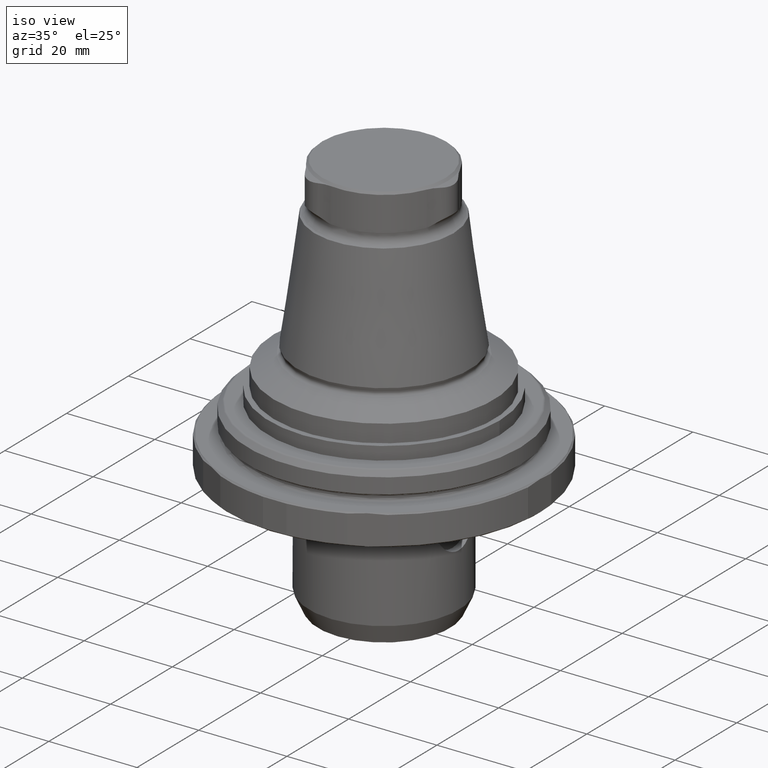
[diagram: clean part render]
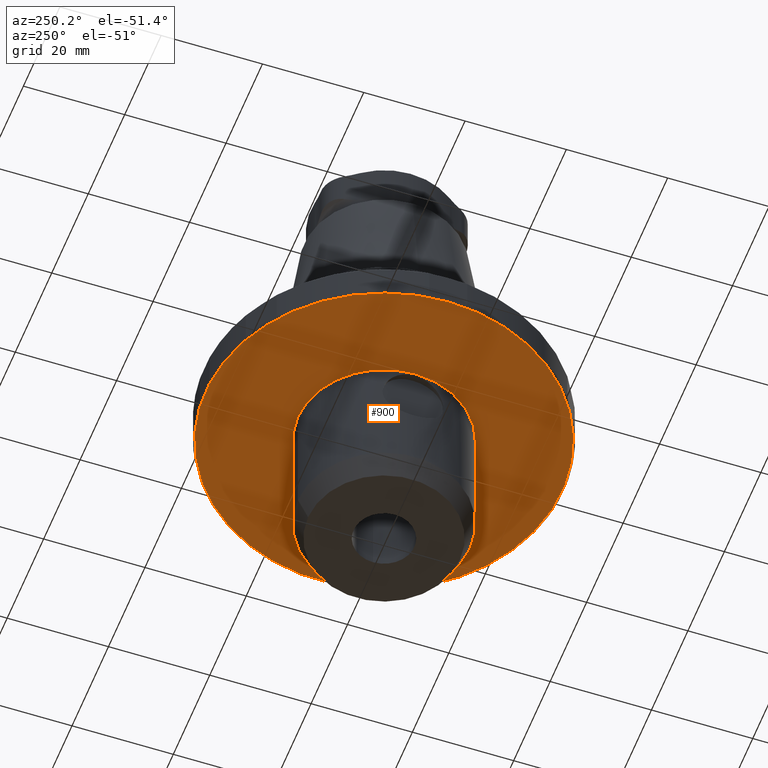
[diagram: tour spotlight — one face highlighted and labeled with its STEP entity id]
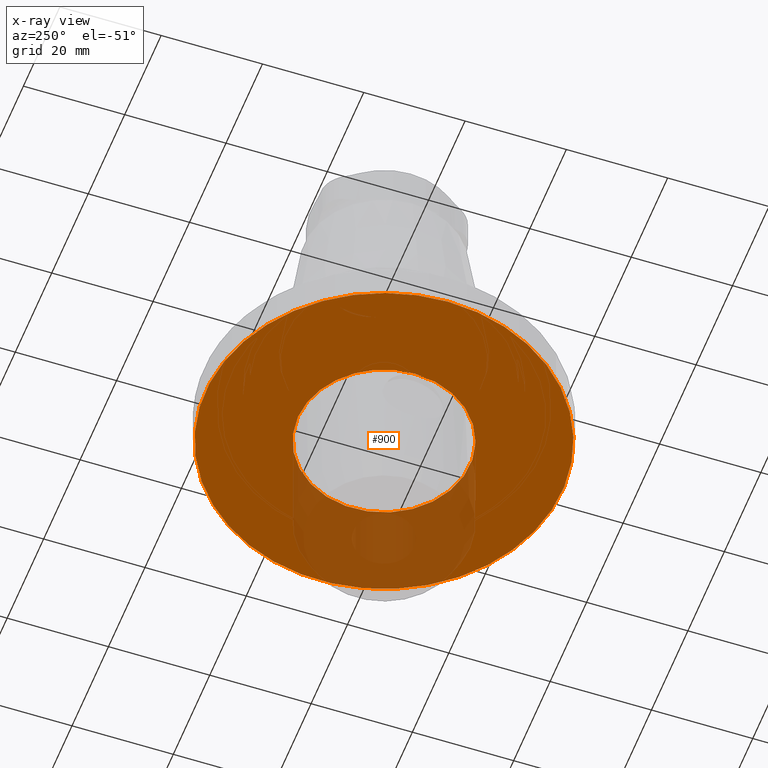
[diagram: x-ray of the same camera — body ghosted, this tour face saturated]
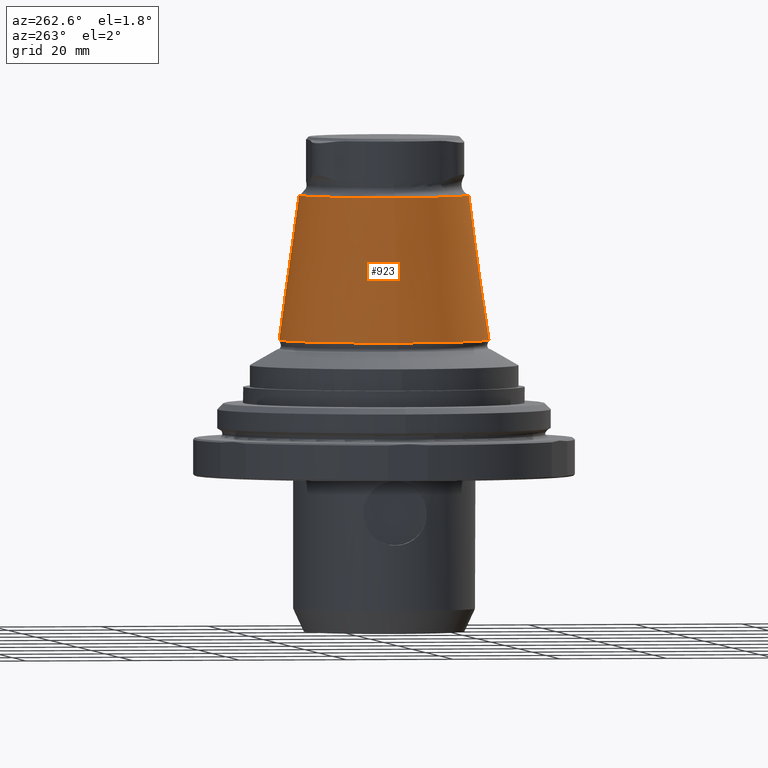
[diagram: tour spotlight — one face highlighted and labeled with its STEP entity id]
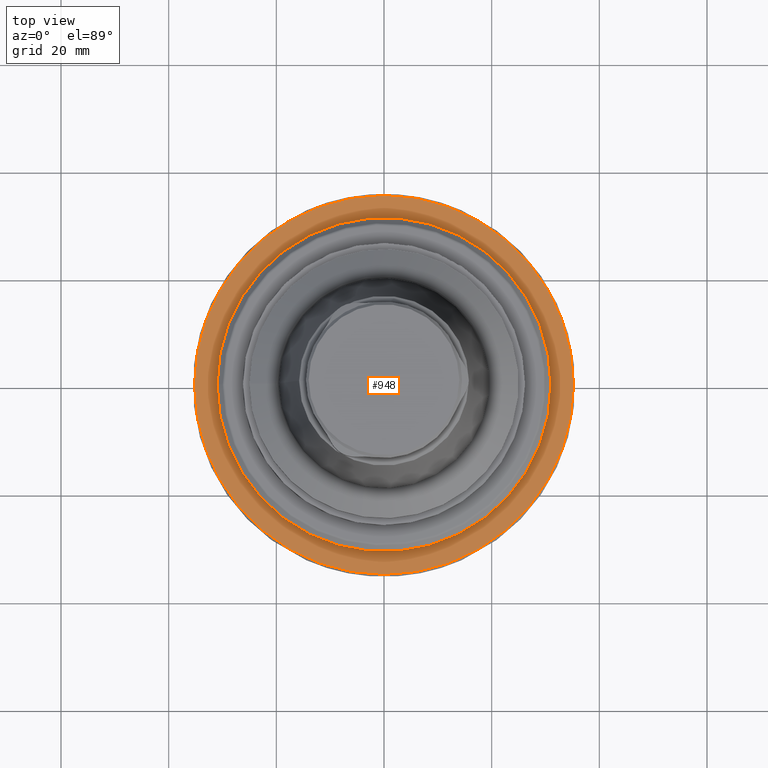
[diagram: tour spotlight — one face highlighted and labeled with its STEP entity id]
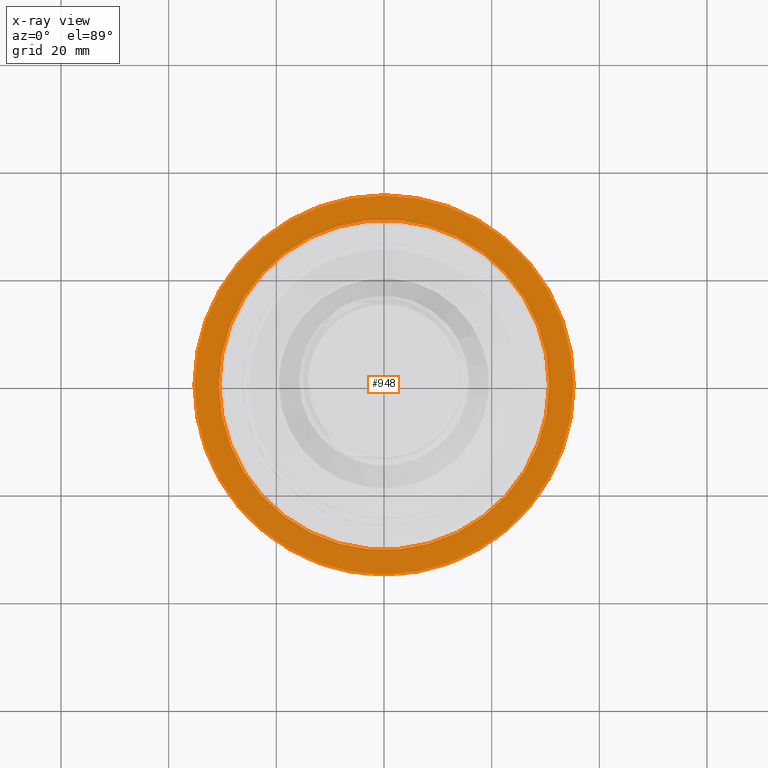
[diagram: x-ray of the same camera — body ghosted, this tour face saturated]
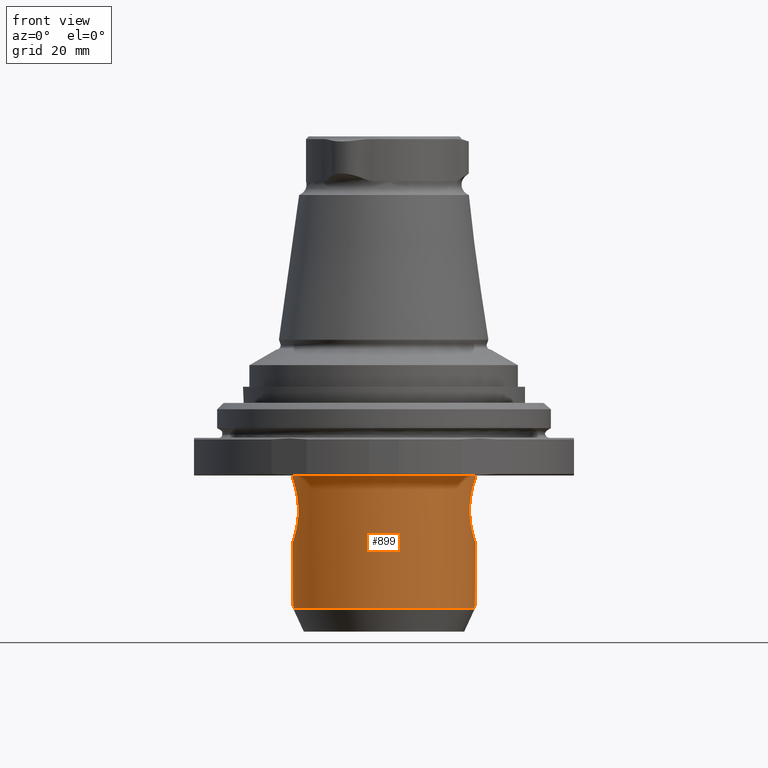
[diagram: tour spotlight — one face highlighted and labeled with its STEP entity id]
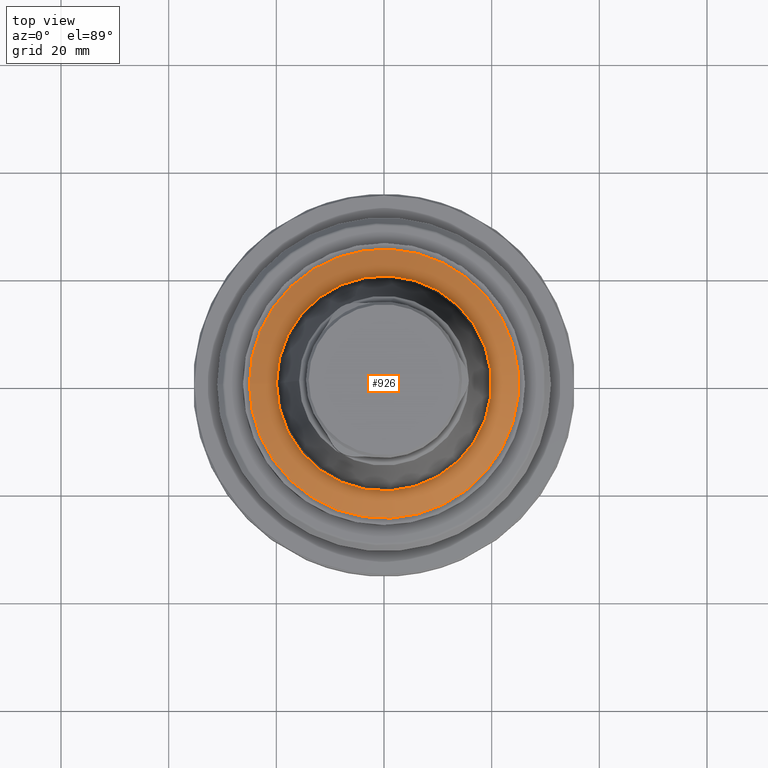
[diagram: tour spotlight — one face highlighted and labeled with its STEP entity id]
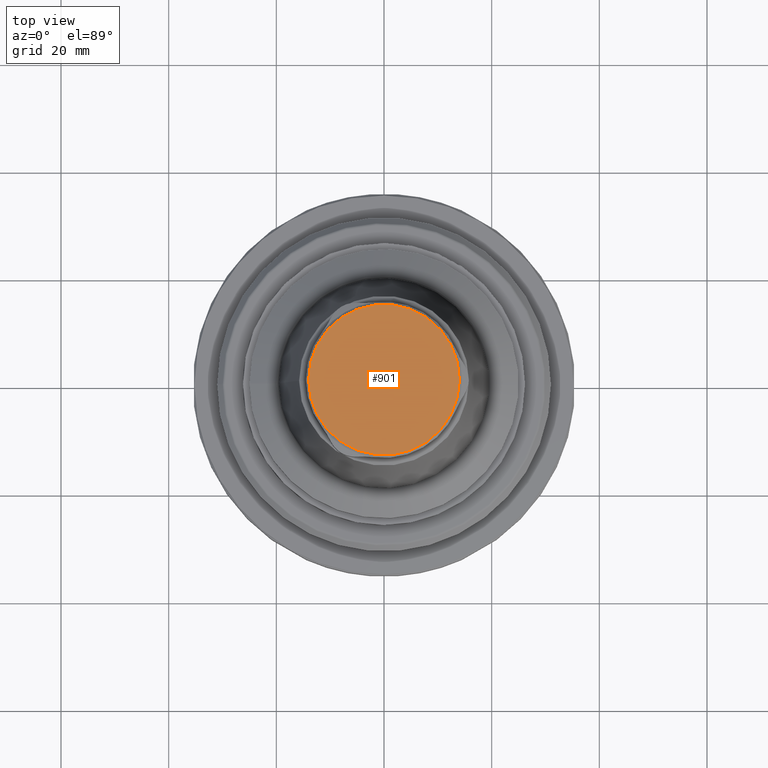
[diagram: tour spotlight — one face highlighted and labeled with its STEP entity id]
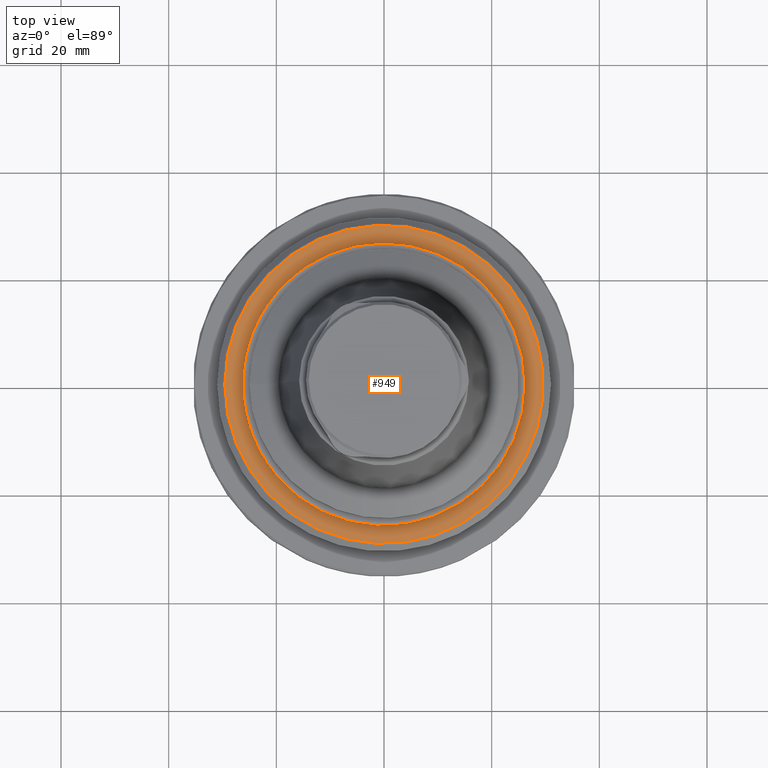
[diagram: tour spotlight — one face highlighted and labeled with its STEP entity id]
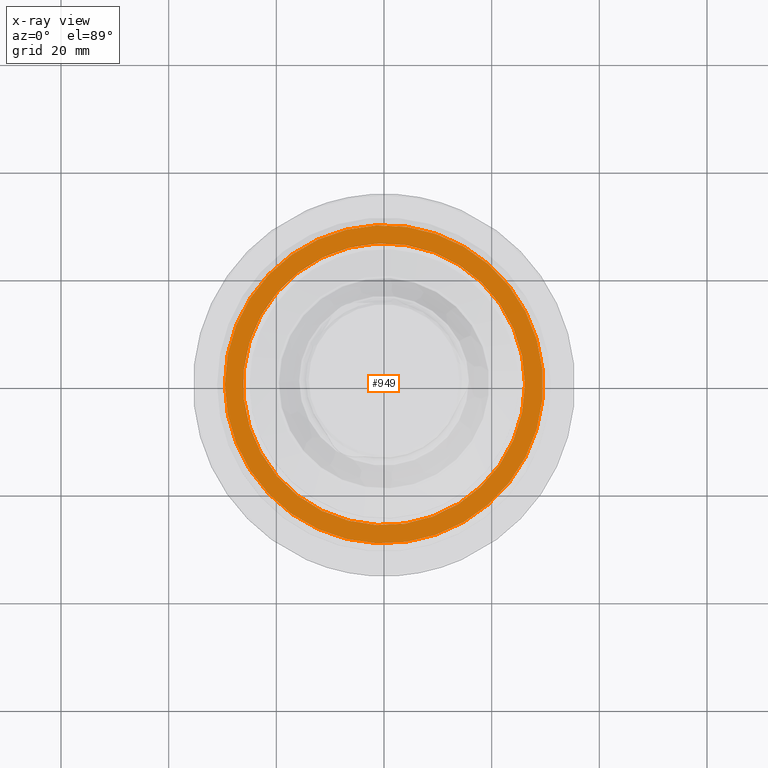
[diagram: x-ray of the same camera — body ghosted, this tour face saturated]
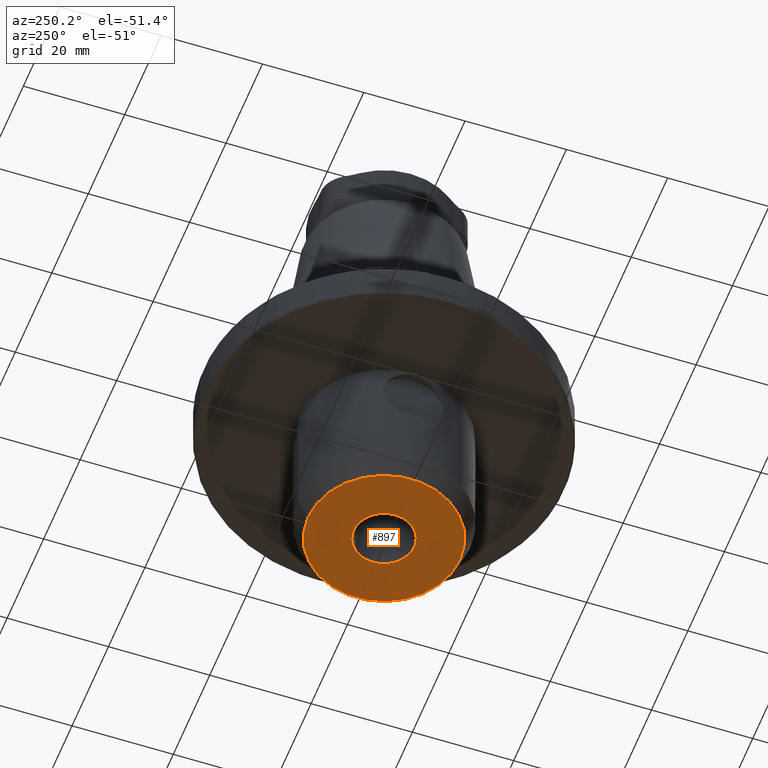
[diagram: tour spotlight — one face highlighted and labeled with its STEP entity id]
A machine part: a face-by-face anatomy tour. The part has 66 B-rep faces; the first image is the clean iso view, then the 8 largest visible faces are spotlighted one at a time (largest first), each with its STEP entity span.

Face 1 — auxiliary view, entity #900. An x-ray twin of the same camera follows (body ghosted, this face saturated) — the face is partly hidden behind the body. In plain terms, the highlighted planar face has unit normal (-0, -0, -1).
Definition (entity closure, byte-faithful):
#175=ORIENTED_EDGE('',*,*,#422,.F.);
#176=ORIENTED_EDGE('',*,*,#423,.T.);
#422=EDGE_CURVE('',#547,#547,#636,.T.);
#423=EDGE_CURVE('',#548,#548,#637,.T.);
#547=VERTEX_POINT('',#1420);
#548=VERTEX_POINT('',#1423);
#636=CIRCLE('',#982,17.);
#637=CIRCLE('',#984,35.2);
#696=EDGE_LOOP('',(#175));
#697=EDGE_LOOP('',(#176));
#792=FACE_BOUND('',#696,.T.);
#793=FACE_BOUND('',#697,.T.);
#881=PLANE('',#983);
#900=ADVANCED_FACE('',(#792,#793),#881,.T.);
#982=AXIS2_PLACEMENT_3D('',#1419,#1111,#1112);
#983=AXIS2_PLACEMENT_3D('',#1421,#1113,#1114);
#984=AXIS2_PLACEMENT_3D('',#1422,#1115,#1116);
#1111=DIRECTION('',(-4.38328612912168E-16,-8.51929322185263E-24,-1.));
#1112=DIRECTION('',(-1.,9.15933995315755E-16,4.38328610599545E-16));
#1113=DIRECTION('',(-4.38328612912168E-16,-8.51929322185263E-24,-1.));
#1114=DIRECTION('',(-1.,9.77164313006873E-16,4.38328610599545E-16));
#1115=DIRECTION('',(-5.47430718319515E-16,-9.52839907700963E-18,-1.));
#1116=DIRECTION('',(-1.,8.32667268468868E-16,5.47430716006892E-16));
#1419=CARTESIAN_POINT('',(-9.8143331184139E-14,-9.81645352364844E-14,-7.99999999999998));
#1420=CARTESIAN_POINT('',(-17.0000000000001,-8.25936573161166E-14,-7.99999999999997));
#1421=CARTESIAN_POINT('',(-26.5000000000001,-7.22696809418023E-14,-7.99999999999997));
#1422=CARTESIAN_POINT('',(-9.20337344411771E-14,-9.82312339663145E-14,-8.00000000000001));
#1423=CARTESIAN_POINT('',(-35.2000000000001,-6.89213461162103E-14,-7.99999999999999));

Face 2 — auxiliary view, entity #923. In plain terms, the highlighted conical surface has half-angle 7.95 deg.
Definition (entity closure, byte-faithful):
#160=CONICAL_SURFACE('',#1022,19.5234803751964,0.138753675533549);
#278=ORIENTED_EDGE('',*,*,#474,.T.);
#279=ORIENTED_EDGE('',*,*,#475,.F.);
#474=EDGE_CURVE('',#581,#581,#652,.T.);
#475=EDGE_CURVE('',#582,#582,#653,.T.);
#581=VERTEX_POINT('',#1616);
#582=VERTEX_POINT('',#1619);
#652=CIRCLE('',#1021,15.7697129677509);
#653=CIRCLE('',#1023,19.5234803751964);
#723=EDGE_LOOP('',(#278));
#724=EDGE_LOOP('',(#279));
#819=FACE_BOUND('',#723,.T.);
#820=FACE_BOUND('',#724,.T.);
#923=ADVANCED_FACE('',(#819,#820),#160,.T.);
#1021=AXIS2_PLACEMENT_3D('',#1615,#1201,#1202);
#1022=AXIS2_PLACEMENT_3D('',#1617,#1203,#1204);
#1023=AXIS2_PLACEMENT_3D('',#1618,#1205,#1206);
#1201=DIRECTION('',(-4.38328612912168E-16,-8.51929322185263E-24,-1.));
#1202=DIRECTION('',(-1.,9.77164313006873E-16,4.38328610599545E-16));
#1203=DIRECTION('',(-4.38328612912168E-16,-8.51929322185263E-24,-1.));
#1204=DIRECTION('',(-1.,9.77164313006873E-16,4.38328610599545E-16));
#1205=DIRECTION('',(-4.38328612912168E-16,-8.51929322185263E-24,-1.));
#1206=DIRECTION('',(-1.,9.77164313006873E-16,4.38328610599545E-16));
#1615=CARTESIAN_POINT('',(-6.84295923615457E-14,-9.81645347925611E-14,44.108));
#1616=CARTESIAN_POINT('',(-15.7697129677509,-8.27549340541132E-14,44.108));
#1617=CARTESIAN_POINT('',(-8.02117003448131E-14,-9.81645350215565E-14,17.2283767306235));
#1618=CARTESIAN_POINT('',(-8.02117003448131E-14,-9.81645350215565E-14,17.2283767306235));
#1619=CARTESIAN_POINT('',(-19.5234803751965,-7.90868867332246E-14,17.2283767306235));

Face 3 — top view, entity #948. An x-ray twin of the same camera follows (body ghosted, this face saturated) — the face is partly hidden behind the body. In plain terms, the highlighted planar face has unit normal (-0, -0, -1).
Definition (entity closure, byte-faithful):
#390=ORIENTED_EDGE('',*,*,#531,.T.);
#391=ORIENTED_EDGE('',*,*,#486,.F.);
#486=EDGE_CURVE('',#593,#593,#662,.T.);
#531=EDGE_CURVE('',#622,#622,#677,.T.);
#593=VERTEX_POINT('',#1649);
#622=VERTEX_POINT('',#1788);
#662=CIRCLE('',#1040,35.2);
#677=CIRCLE('',#1072,30.65);
#757=EDGE_LOOP('',(#390));
#758=EDGE_LOOP('',(#391));
#853=FACE_BOUND('',#757,.T.);
#854=FACE_BOUND('',#758,.T.);
#892=PLANE('',#1071);
#948=ADVANCED_FACE('',(#853,#854),#892,.F.);
#1040=AXIS2_PLACEMENT_3D('',#1648,#1241,#1242);
#1071=AXIS2_PLACEMENT_3D('',#1786,#1317,#1318);
#1072=AXIS2_PLACEMENT_3D('',#1787,#1319,#1320);
#1241=DIRECTION('',(-5.47430718319515E-16,-9.52839907700963E-18,-1.));
#1242=DIRECTION('',(-1.,8.32667268468868E-16,5.47430716006892E-16));
#1317=DIRECTION('',(-5.47430718319515E-16,-9.52839907700963E-18,-1.));
#1318=DIRECTION('',(-1.,8.32667268468868E-16,5.47430716006892E-16));
#1319=DIRECTION('',(-5.47430718319515E-16,-9.52839907700963E-18,-1.));
#1320=DIRECTION('',(-1.,8.32667268468868E-16,5.47430716006892E-16));
#1648=CARTESIAN_POINT('',(-8.82017194129406E-14,-9.81645351727754E-14,-1.));
#1649=CARTESIAN_POINT('',(-35.2000000000001,-6.88546473226712E-14,-0.999999999999984));
#1786=CARTESIAN_POINT('',(-30.6500000000001,-7.26432833942046E-14,-0.999999999999986));
#1787=CARTESIAN_POINT('',(-8.82017194129406E-14,-9.81645351727754E-14,-1.));
#1788=CARTESIAN_POINT('',(-30.6500000000001,-7.26432833942046E-14,-0.999999999999986));

Face 4 — front view, entity #899. In plain terms, the highlighted cylindrical surface (bore or boss wall) has radius 17 mm, axis along (-0, -0, -1).
Definition (entity closure, byte-faithful):
#81=B_SPLINE_CURVE_WITH_KNOTS('',3,(#1379,#1380,#1381,#1382,#1383,#1384,
#1385,#1386,#1387,#1388,#1389,#1390,#1391,#1392,#1393,#1394,#1395,#1396,
#1397),.UNSPECIFIED.,.T.,.F.,(1,1,1,1,1,1,1,1,1,1,1,1,1,1,1,1,1,1,1,1,1,
1,1),(-0.0070935906276836,-0.00472906041845574,-0.00236453020922787,4.31209882884815E-20,
0.00236453020922787,0.00472906041845574,0.00709359062768361,0.00945812083691147,
0.0118226510461393,0.0141871812553672,0.0165517114645951,0.0189162416738229,
0.0212807718830508,0.0236453020922787,0.0260098323015066,0.0283743625107344,
0.0307388927199623,0.0331034229291902,0.035467953138418,0.0378324833476459,
0.0401970135568738,0.0425615437661016,0.0449260739753295),.UNSPECIFIED.);
#82=B_SPLINE_CURVE_WITH_KNOTS('',3,(#1399,#1400,#1401,#1402,#1403,#1404,
#1405,#1406,#1407,#1408,#1409,#1410,#1411,#1412,#1413,#1414,#1415,#1416,
#1417),.UNSPECIFIED.,.T.,.F.,(1,1,1,1,1,1,1,1,1,1,1,1,1,1,1,1,1,1,1,1,1,
1,1),(-0.00709130199013507,-0.00472753466009004,-0.00236376733004502,8.65313520714965E-19,
0.00236376733004502,0.00472753466009004,0.00709130199013506,0.00945506932018008,
0.0118188366502251,0.0141826039802701,0.0165463713103151,0.0189101386403602,
0.0212739059704052,0.0236376733004502,0.0260014406304952,0.0283652079605403,
0.0307289752905853,0.0330927426206303,0.0354565099506753,0.0378202772807203,
0.0401840446107654,0.0425478119408104,0.0449115792708554),.UNSPECIFIED.);
#123=CYLINDRICAL_SURFACE('',#981,17.);
#171=ORIENTED_EDGE('',*,*,#420,.F.);
#172=ORIENTED_EDGE('',*,*,#421,.F.);
#173=ORIENTED_EDGE('',*,*,#422,.T.);
#174=ORIENTED_EDGE('',*,*,#419,.F.);
#419=EDGE_CURVE('',#544,#544,#635,.T.);
#420=EDGE_CURVE('',#545,#545,#81,.T.);
#421=EDGE_CURVE('',#546,#546,#82,.T.);
#422=EDGE_CURVE('',#547,#547,#636,.T.);
#544=VERTEX_POINT('',#1377);
#545=VERTEX_POINT('',#1398);
#546=VERTEX_POINT('',#1418);
#547=VERTEX_POINT('',#1420);
#635=CIRCLE('',#980,17.);
#636=CIRCLE('',#982,17.);
#692=EDGE_LOOP('',(#171));
#693=EDGE_LOOP('',(#172));
#694=EDGE_LOOP('',(#173));
#695=EDGE_LOOP('',(#174));
#788=FACE_BOUND('',#692,.T.);
#789=FACE_BOUND('',#693,.T.);
#790=FACE_BOUND('',#694,.T.);
#791=FACE_BOUND('',#695,.T.);
#899=ADVANCED_FACE('',(#788,#789,#790,#791),#123,.T.);
#980=AXIS2_PLACEMENT_3D('',#1376,#1107,#1108);
#981=AXIS2_PLACEMENT_3D('',#1378,#1109,#1110);
#982=AXIS2_PLACEMENT_3D('',#1419,#1111,#1112);
#1107=DIRECTION('',(-5.47430718319515E-16,-8.51929311524195E-24,-1.));
#1108=DIRECTION('',(-6.38378239159465E-16,1.,-3.83055215771257E-23));
#1109=DIRECTION('',(-5.47430718319515E-16,-8.51929311524195E-24,-1.));
#1110=DIRECTION('',(-6.38378239159465E-16,1.,-3.83055215771257E-23));
#1111=DIRECTION('',(-4.38328612912168E-16,-8.51929322185263E-24,-1.));
#1112=DIRECTION('',(-1.,9.15933995315755E-16,4.38328610599545E-16));
#1376=CARTESIAN_POINT('',(-1.11670884087533E-13,-9.81645354470045E-14,-32.7109861589809));
#1377=CARTESIAN_POINT('',(-1.22523314153244E-13,16.9999999999999,-32.7109861589809));
#1378=CARTESIAN_POINT('',(-1.18946306511521E-13,-9.8164535560227E-14,-46.001110699893));
#1379=CARTESIAN_POINT('',(16.8830467913033,-2.37440035371411,-20.1787537965792));
#1380=CARTESIAN_POINT('',(17.0585106697229,-0.000496440944390433,-20.6661905899899));
#1381=CARTESIAN_POINT('',(16.8829105298044,2.37638611749168,-20.1784274382188));
#1382=CARTESIAN_POINT('',(16.464885619644,4.34699919293668,-18.8356680441569));
#1383=CARTESIAN_POINT('',(16.0355034711857,5.6701470596488,-16.8590540569191));
#1384=CARTESIAN_POINT('',(15.8432287916274,6.15934902970658,-14.4937006295997));
#1385=CARTESIAN_POINT('',(16.0275871105997,5.69202358018492,-12.1136472855037));
#1386=CARTESIAN_POINT('',(16.4629148407088,4.3570884323873,-10.1319575907832));
#1387=CARTESIAN_POINT('',(16.8834990991576,2.37315298646517,-8.81187940265972));
#1388=CARTESIAN_POINT('',(17.0581555225339,0.00214001057716613,-8.33887355445228));
#1389=CARTESIAN_POINT('',(16.8838783489642,-2.37200760037221,-8.81068407771533));
#1390=CARTESIAN_POINT('',(16.4623064569803,-4.35931964477486,-10.1340057333478));
#1391=CARTESIAN_POINT('',(16.0278905395786,-5.69102602674467,-12.1133968969042));
#1392=CARTESIAN_POINT('',(15.8431924631086,-6.15945973215446,-14.4886723591216));
#1393=CARTESIAN_POINT('',(16.035310674753,-5.67079374500995,-16.8595475086015));
#1394=CARTESIAN_POINT('',(16.4656423134265,-4.34444944656945,-18.8383691649734));
#1395=CARTESIAN_POINT('',(16.8830467913033,-2.37440035371411,-20.1787537965792));
#1396=CARTESIAN_POINT('',(17.0585106697229,-0.000496440944390433,-20.6661905899899));
#1397=CARTESIAN_POINT('',(16.8829105298044,2.37638611749168,-20.1784274382188));
#1398=CARTESIAN_POINT('',(16.9999999999999,4.44310017080886E-17,-20.5036572657929));
#1399=CARTESIAN_POINT('',(-16.8832929570119,2.3738078366023,-20.1800878484436));
#1400=CARTESIAN_POINT('',(-17.0583937895881,0.000508446711938737,-20.6600571505061));
#1401=CARTESIAN_POINT('',(-16.8831318846362,-2.37584162345005,-20.1796835495317));
#1402=CARTESIAN_POINT('',(-16.4636319189378,-4.35272812005485,-18.8480461771511));
#1403=CARTESIAN_POINT('',(-16.0321697213952,-5.67931790690417,-16.8737438656125));
#1404=CARTESIAN_POINT('',(-15.8431005947195,-6.15967717311535,-14.5057534593059));
#1405=CARTESIAN_POINT('',(-16.0312736497881,-5.68196431689271,-12.1288162938728));
#1406=CARTESIAN_POINT('',(-16.4646361214893,-4.34962916428014,-10.1481840094212));
#1407=CARTESIAN_POINT('',(-16.8833841034555,-2.37250547972392,-8.81974619751361));
#1408=CARTESIAN_POINT('',(-17.0581723938014,-0.00286131769876346,-8.340544935032));
#1409=CARTESIAN_POINT('',(-16.8839254340415,2.37049679888471,-8.8180765763698));
#1410=CARTESIAN_POINT('',(-16.4640492354727,4.35185836280534,-10.1500629225052));
#1411=CARTESIAN_POINT('',(-16.0315176925378,5.68111761474336,-12.1290317562848));
#1412=CARTESIAN_POINT('',(-15.8431327877959,6.15961190028355,-14.5000743197506));
#1413=CARTESIAN_POINT('',(-16.0317935102618,5.68043470336846,-16.8730822452959));
#1414=CARTESIAN_POINT('',(-16.4642113598416,4.3509182686085,-18.8501505921759));
#1415=CARTESIAN_POINT('',(-16.8832929570119,2.3738078366023,-20.1800878484436));
#1416=CARTESIAN_POINT('',(-17.0583937895881,0.000508446711938737,-20.6600571505061));
#1417=CARTESIAN_POINT('',(-16.8831318846362,-2.37584162345005,-20.1796835495317));
#1418=CARTESIAN_POINT('',(-17.0000000000001,-8.91429399631531E-16,-20.4999999999999));
#1419=CARTESIAN_POINT('',(-9.8143331184139E-14,-9.81645352364844E-14,-7.99999999999998));
#1420=CARTESIAN_POINT('',(-17.0000000000001,-8.25936573161166E-14,-7.99999999999997));

Face 5 — top view, entity #926. In plain terms, the highlighted conical surface has half-angle 60 deg.
Definition (entity closure, byte-faithful):
#162=CONICAL_SURFACE('',#1028,25.,1.0471975511966);
#284=ORIENTED_EDGE('',*,*,#477,.T.);
#285=ORIENTED_EDGE('',*,*,#478,.F.);
#477=EDGE_CURVE('',#584,#584,#655,.T.);
#478=EDGE_CURVE('',#585,#585,#656,.T.);
#584=VERTEX_POINT('',#1625);
#585=VERTEX_POINT('',#1628);
#655=CIRCLE('',#1027,19.9770526580503);
#656=CIRCLE('',#1029,25.);
#729=EDGE_LOOP('',(#284));
#730=EDGE_LOOP('',(#285));
#825=FACE_BOUND('',#729,.T.);
#826=FACE_BOUND('',#730,.T.);
#926=ADVANCED_FACE('',(#825,#826),#162,.T.);
#1027=AXIS2_PLACEMENT_3D('',#1624,#1213,#1214);
#1028=AXIS2_PLACEMENT_3D('',#1626,#1215,#1216);
#1029=AXIS2_PLACEMENT_3D('',#1627,#1217,#1218);
#1213=DIRECTION('',(-4.38328612912168E-16,-8.51929322185263E-24,-1.));
#1214=DIRECTION('',(-1.,9.77164313006873E-16,4.38328610599545E-16));
#1215=DIRECTION('',(-4.38328612912168E-16,-8.51929322185263E-24,-1.));
#1216=DIRECTION('',(-1.,9.77164313006873E-16,4.38328610599545E-16));
#1217=DIRECTION('',(-4.38328612912168E-16,-8.51929322185263E-24,-1.));
#1218=DIRECTION('',(-1.,9.77164313006873E-16,4.38328610599545E-16));
#1624=CARTESIAN_POINT('',(-8.10136170325717E-14,-9.81645350371424E-14,15.398889300107));
#1625=CARTESIAN_POINT('',(-19.9770526580504,-7.86436721006366E-14,15.398889300107));
#1626=CARTESIAN_POINT('',(-8.2284770010017E-14,-9.81645350618484E-14,12.498889300107));
#1627=CARTESIAN_POINT('',(-8.2284770010017E-14,-9.81645350618484E-14,12.498889300107));
#1628=CARTESIAN_POINT('',(-25.0000000000001,-7.37354272366765E-14,12.498889300107));

Face 6 — top view, entity #901. In plain terms, the highlighted planar face has unit normal (0, 0, 1).
Definition (entity closure, byte-faithful):
#177=ORIENTED_EDGE('',*,*,#424,.F.);
#424=EDGE_CURVE('',#549,#549,#638,.T.);
#549=VERTEX_POINT('',#1426);
#638=CIRCLE('',#986,14.);
#698=EDGE_LOOP('',(#177));
#794=FACE_BOUND('',#698,.T.);
#882=PLANE('',#985);
#901=ADVANCED_FACE('',(#794),#882,.T.);
#985=AXIS2_PLACEMENT_3D('',#1424,#1117,#1118);
#986=AXIS2_PLACEMENT_3D('',#1425,#1119,#1120);
#1117=DIRECTION('',(4.38328612912168E-16,8.51929322185263E-24,1.));
#1118=DIRECTION('',(1.,-9.77164313006873E-16,-4.38328610599545E-16));
#1119=DIRECTION('',(-4.38328612912168E-16,-8.51929322185263E-24,-1.));
#1120=DIRECTION('',(-1.,9.77164313006873E-16,4.38328610599545E-16));
#1424=CARTESIAN_POINT('',(-14.0000000000001,-8.44842343176727E-14,55.));
#1425=CARTESIAN_POINT('',(-6.36553171097064E-14,-9.81645346997689E-14,55.));
#1426=CARTESIAN_POINT('',(-14.0000000000001,-8.44842343176727E-14,55.));

Face 7 — top view, entity #949. An x-ray twin of the same camera follows (body ghosted, this face saturated) — the face is partly hidden behind the body. In plain terms, the highlighted planar face has unit normal (-0, -0, -1).
Definition (entity closure, byte-faithful):
#392=ORIENTED_EDGE('',*,*,#481,.F.);
#393=ORIENTED_EDGE('',*,*,#532,.F.);
#481=EDGE_CURVE('',#588,#588,#659,.T.);
#532=EDGE_CURVE('',#623,#623,#678,.T.);
#588=VERTEX_POINT('',#1637);
#623=VERTEX_POINT('',#1791);
#659=CIRCLE('',#1035,26.2);
#678=CIRCLE('',#1074,29.5524710292422);
#759=EDGE_LOOP('',(#392));
#760=EDGE_LOOP('',(#393));
#855=FACE_BOUND('',#759,.T.);
#856=FACE_BOUND('',#760,.T.);
#893=PLANE('',#1073);
#949=ADVANCED_FACE('',(#855,#856),#893,.F.);
#1035=AXIS2_PLACEMENT_3D('',#1636,#1229,#1230);
#1073=AXIS2_PLACEMENT_3D('',#1789,#1321,#1322);
#1074=AXIS2_PLACEMENT_3D('',#1790,#1323,#1324);
#1229=DIRECTION('',(5.5264198129461E-16,5.34134317477693E-17,1.));
#1230=DIRECTION('',(1.,-9.77164313006873E-16,-5.58279830278911E-16));
#1321=DIRECTION('',(-5.47430718319515E-16,-9.52839907700963E-18,-1.));
#1322=DIRECTION('',(-1.,8.32667268468868E-16,5.47430716006892E-16));
#1323=DIRECTION('',(-5.47430718319515E-16,-9.52839907700963E-18,-1.));
#1324=DIRECTION('',(-1.,8.32667268468868E-16,5.47430716006892E-16));
#1636=CARTESIAN_POINT('',(-8.02869289039323E-14,-9.81483671983164E-14,5.5));
#1637=CARTESIAN_POINT('',(26.1999999999999,-1.23750072199096E-13,5.49999999999998));
#1789=CARTESIAN_POINT('',(-8.46434197438637E-14,-9.81026005787748E-14,5.5));
#1790=CARTESIAN_POINT('',(-8.46434197438637E-14,-9.81026005787748E-14,5.5));
#1791=CARTESIAN_POINT('',(-29.5524710292423,-7.34952252503504E-14,5.50000000000002));

Face 8 — auxiliary view, entity #897. In plain terms, the highlighted planar face has unit normal (-0, -0, -1).
Definition (entity closure, byte-faithful):
#167=ORIENTED_EDGE('',*,*,#417,.T.);
#168=ORIENTED_EDGE('',*,*,#418,.T.);
#417=EDGE_CURVE('',#542,#542,#633,.T.);
#418=EDGE_CURVE('',#543,#543,#634,.T.);
#542=VERTEX_POINT('',#1372);
#543=VERTEX_POINT('',#1374);
#633=CIRCLE('',#977,5.99999999999988);
#634=CIRCLE('',#978,15.);
#688=EDGE_LOOP('',(#167));
#689=EDGE_LOOP('',(#168));
#784=FACE_BOUND('',#688,.T.);
#785=FACE_BOUND('',#689,.T.);
#880=PLANE('',#976);
#897=ADVANCED_FACE('',(#784,#785),#880,.T.);
#976=AXIS2_PLACEMENT_3D('',#1370,#1099,#1100);
#977=AXIS2_PLACEMENT_3D('',#1371,#1101,#1102);
#978=AXIS2_PLACEMENT_3D('',#1373,#1103,#1104);
#1099=DIRECTION('',(-5.47430718319515E-16,-8.51929311524195E-24,-1.));
#1100=DIRECTION('',(-6.38378239159465E-16,1.,-3.83055215771257E-23));
#1101=DIRECTION('',(0.,0.,1.));
#1102=DIRECTION('',(1.,0.,0.));
#1103=DIRECTION('',(-5.47430718319515E-16,-8.51929311524195E-24,-1.));
#1104=DIRECTION('',(-6.38378239159465E-16,1.,-3.83055215771257E-23));
#1370=CARTESIAN_POINT('',(-1.23594495602797E-13,14.9999999999999,-37.));
#1371=CARTESIAN_POINT('',(0.,0.,-37.));
#1372=CARTESIAN_POINT('',(5.99999999999988,0.,-37.));
#1373=CARTESIAN_POINT('',(-1.14018822015405E-13,-9.81645354835439E-14,-37.));
#1374=CARTESIAN_POINT('',(-1.23594495602797E-13,14.9999999999999,-37.));